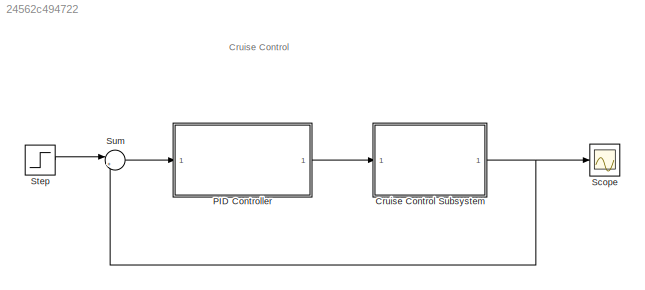
MODEL slx_24562c494722
KIND model
CONFIG AbsTol = auto
CONFIG EnableMultiTasking = off
CONFIG FixedStep = auto
CONFIG MaxStep = auto
CONFIG MinStep = auto
CONFIG RelTol = 1e-3
CONFIG SampleTimeConstraint = Unconstrained
CONFIG SolverName = VariableStepAuto
CONFIG StartTime = 0.0
CONFIG StopTime = 10.0
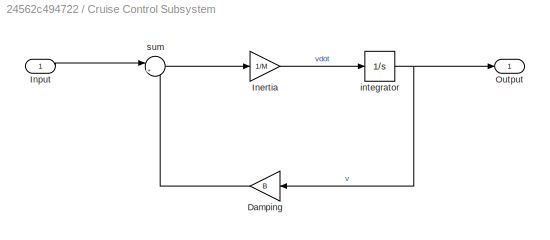
BLOCK [SubSystem] Cruise Control Subsystem
  Ports = [1, 1]
  RequestExecContextInheritance = off
BLOCK [Gain] Cruise Control Subsystem/Damping
  Gain = B
  NameLocation = top
BLOCK [Gain] Cruise Control Subsystem/Inertia
  Gain = 1/M
BLOCK [Inport] Cruise Control Subsystem/Input
BLOCK [Outport] Cruise Control Subsystem/Output
BLOCK [Integrator] Cruise Control Subsystem/integrator
  Ports = [1, 1]
BLOCK [Sum] Cruise Control Subsystem/sum
  Inputs = |+-
  NameLocation = top
  Ports = [2, 1]
BLOCK [ModelReference] PID Controller
  ModelNameDialog = PID_Controller
  ModelReferenceVersion = 1.6
  Ports = [1, 1]
BLOCK [Scope] Scope
  Floating = off
  NumInputPorts = 1
  Ports = [1]
  ScopeSpecificationString = Simulink.scopes.TimeScopeBlockCfg('CurrentConfiguration', extmgr.ConfigurationSet(extmgr.Configuration('Core','General UI',true),extmgr.Configuration('Core','Source UI',true),extmgr.Configuration('Sources','WiredSimulink',true),extmgr.Configuration('Visuals','Time Domain',true,'SerializedDisplays',{struct('MinYLimReal','-1.24843','MaxYLimReal','11.23583','YLabelReal','','MinYLimMag','0.00000','Max...<+1348ch>
BLOCK [Step] Step
  After = u
  SampleTime = 0
  Time = 0
BLOCK [Sum] Sum
  Inputs = |+-
  Ports = [2, 1]
ANNOTATION (root): Cruise Control
LINE Cruise Control Subsystem/Damping:1 -> Cruise Control Subsystem/sum:2
LINE Cruise Control Subsystem/Inertia:1 -> Cruise Control Subsystem/integrator:1
LINE Cruise Control Subsystem/Input:1 -> Cruise Control Subsystem/sum:1
NET Cruise Control Subsystem/integrator:1 -> Cruise Control Subsystem/Damping:1, Cruise Control Subsystem/Output:1
LINE Cruise Control Subsystem/sum:1 -> Cruise Control Subsystem/Inertia:1
NET Cruise Control Subsystem:1 -> Scope:1, Sum:2
LINE PID Controller:1 -> Cruise Control Subsystem:1
LINE Step:1 -> Sum:1
LINE Sum:1 -> PID Controller:1
note: NET lines group one-source signal fan-out (src -> all destinations, sorted); 1:1 wires keep LINE
